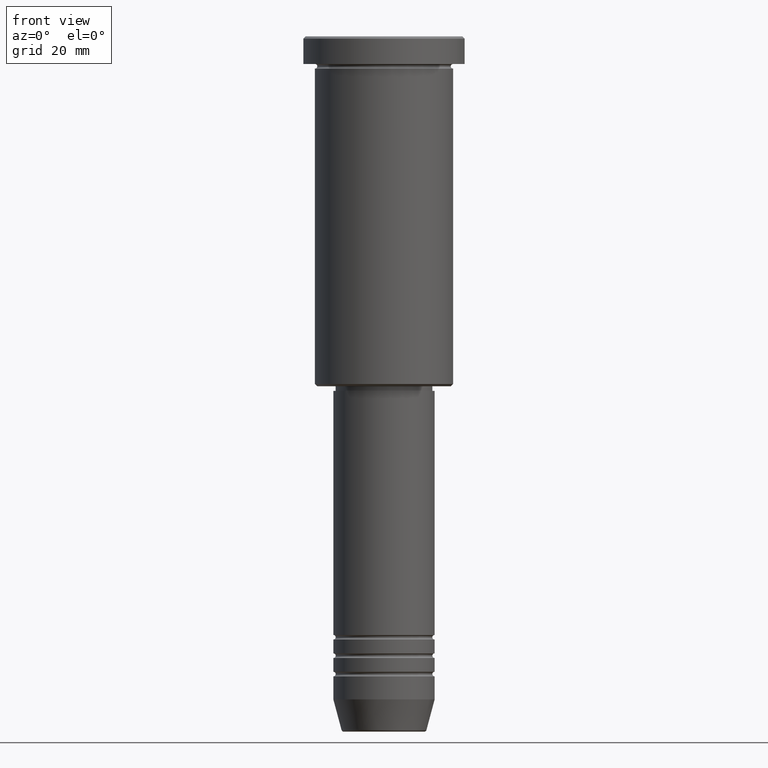
[diagram: clean part render]
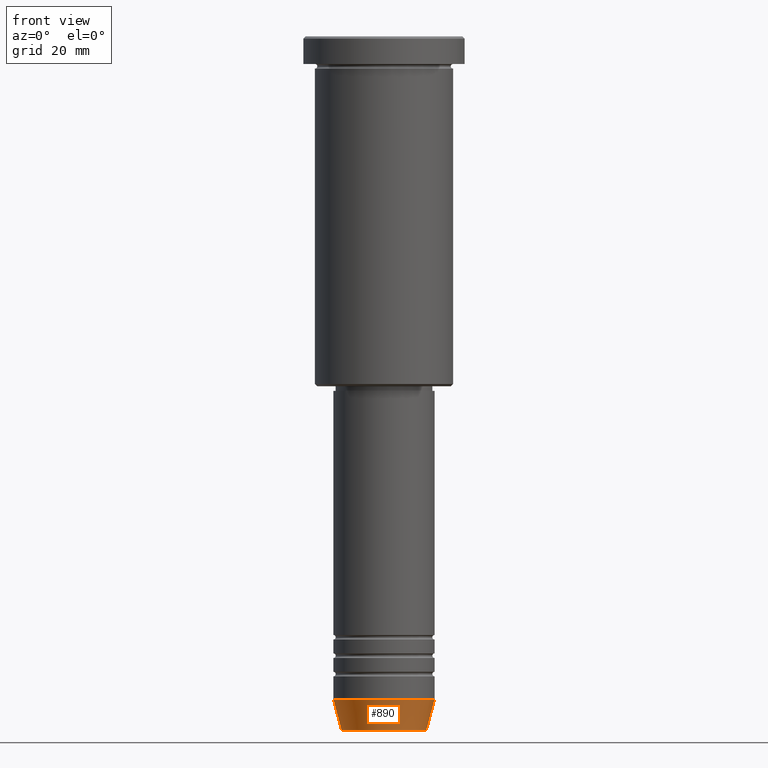
[diagram: same view with one face highlighted and labeled with its STEP entity id]
A machine part, front view. The second image highlights one B-rep face of the part: STEP entity #890.
In plain terms, the highlighted conical surface has half-angle 15 deg.
Its self-contained STEP definition (entity closure, byte-faithful):
#10 = LINE ( 'NONE', #752, #411 ) ;
#35 = EDGE_CURVE ( 'NONE', #343, #105, #734, .T. ) ;
#38 = EDGE_CURVE ( 'NONE', #555, #105, #1056, .T. ) ;
#45 = EDGE_CURVE ( 'NONE', #419, #555, #621, .T. ) ;
#77 = CONICAL_SURFACE ( 'NONE', #289, 11.00000000000000000, 0.2617993877991500740 ) ;
#105 = VERTEX_POINT ( 'NONE', #332 ) ;
#133 = DIRECTION ( 'NONE',  ( -0.000000000000000000, -0.000000000000000000, 1.000000000000000000 ) ) ;
#146 = CARTESIAN_POINT ( 'NONE',  ( 11.00000000000000000, 0.000000000000000000, -144.0000000000000284 ) ) ;
#155 = AXIS2_PLACEMENT_3D ( 'NONE', #684, #784, #874 ) ;
#166 = DIRECTION ( 'NONE',  ( 0.2588190451025213501, 0.000000000000000000, 0.9659258262890680902 ) ) ;
#211 = CARTESIAN_POINT ( 'NONE',  ( 9.223655072137189492, 0.000000000000000000, -150.6294095225512706 ) ) ;
#289 = AXIS2_PLACEMENT_3D ( 'NONE', #327, #133, #1052 ) ;
#298 = ORIENTED_EDGE ( 'NONE', *, *, #971, .F. ) ;
#327 = CARTESIAN_POINT ( 'NONE',  ( 0.000000000000000000, 0.000000000000000000, -144.0000000000000284 ) ) ;
#332 = CARTESIAN_POINT ( 'NONE',  ( 11.00000000000000000, 0.000000000000000000, -144.0000000000000284 ) ) ;
#343 = VERTEX_POINT ( 'NONE', #796 ) ;
#397 = CARTESIAN_POINT ( 'NONE',  ( 0.000000000000000000, 0.000000000000000000, -144.0000000000000284 ) ) ;
#401 = DIRECTION ( 'NONE',  ( -0.2588190451025213501, 3.169619151431772337E-17, 0.9659258262890680902 ) ) ;
#411 = VECTOR ( 'NONE', #401, 1000.000000000000000 ) ;
#419 = VERTEX_POINT ( 'NONE', #746 ) ;
#508 = AXIS2_PLACEMENT_3D ( 'NONE', #397, #750, #1117 ) ;
#540 = ORIENTED_EDGE ( 'NONE', *, *, #38, .T. ) ;
#555 = VERTEX_POINT ( 'NONE', #211 ) ;
#621 = CIRCLE ( 'NONE', #155, 9.223655072137189492 ) ;
#656 = EDGE_LOOP ( 'NONE', ( #298, #1010, #540, #664 ) ) ;
#664 = ORIENTED_EDGE ( 'NONE', *, *, #35, .F. ) ;
#684 = CARTESIAN_POINT ( 'NONE',  ( 0.000000000000000000, 0.000000000000000000, -150.6294095225512706 ) ) ;
#734 = CIRCLE ( 'NONE', #508, 11.00000000000000000 ) ;
#746 = CARTESIAN_POINT ( 'NONE',  ( -9.223655072137189492, 1.238341722557647202E-15, -150.6294095225512706 ) ) ;
#750 = DIRECTION ( 'NONE',  ( -0.000000000000000000, -0.000000000000000000, 1.000000000000000000 ) ) ;
#752 = CARTESIAN_POINT ( 'NONE',  ( -11.00000000000000000, 1.347111479062088405E-15, -144.0000000000000284 ) ) ;
#784 = DIRECTION ( 'NONE',  ( -0.000000000000000000, -0.000000000000000000, 1.000000000000000000 ) ) ;
#796 = CARTESIAN_POINT ( 'NONE',  ( -11.00000000000000000, 1.347111479062088405E-15, -144.0000000000000284 ) ) ;
#874 = DIRECTION ( 'NONE',  ( 1.000000000000000000, 0.000000000000000000, 0.000000000000000000 ) ) ;
#890 = ADVANCED_FACE ( 'NONE', ( #1138 ), #77, .T. ) ;
#971 = EDGE_CURVE ( 'NONE', #419, #343, #10, .T. ) ;
#1010 = ORIENTED_EDGE ( 'NONE', *, *, #45, .T. ) ;
#1052 = DIRECTION ( 'NONE',  ( 1.000000000000000000, 0.000000000000000000, 0.000000000000000000 ) ) ;
#1056 = LINE ( 'NONE', #146, #1178 ) ;
#1117 = DIRECTION ( 'NONE',  ( 1.000000000000000000, 0.000000000000000000, 0.000000000000000000 ) ) ;
#1138 = FACE_OUTER_BOUND ( 'NONE', #656, .T. ) ;
#1178 = VECTOR ( 'NONE', #166, 1000.000000000000000 ) ;